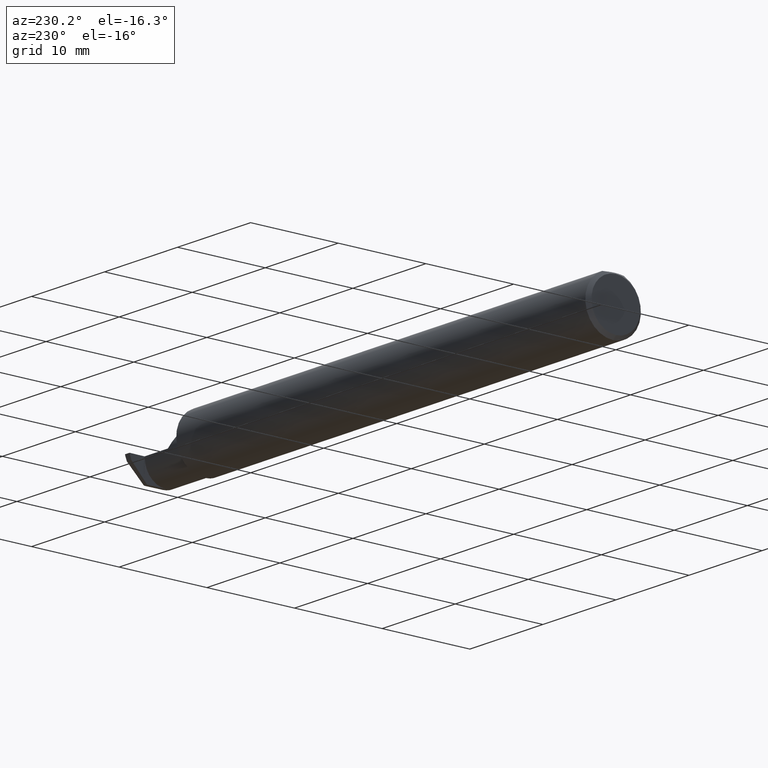
[diagram: clean part render]
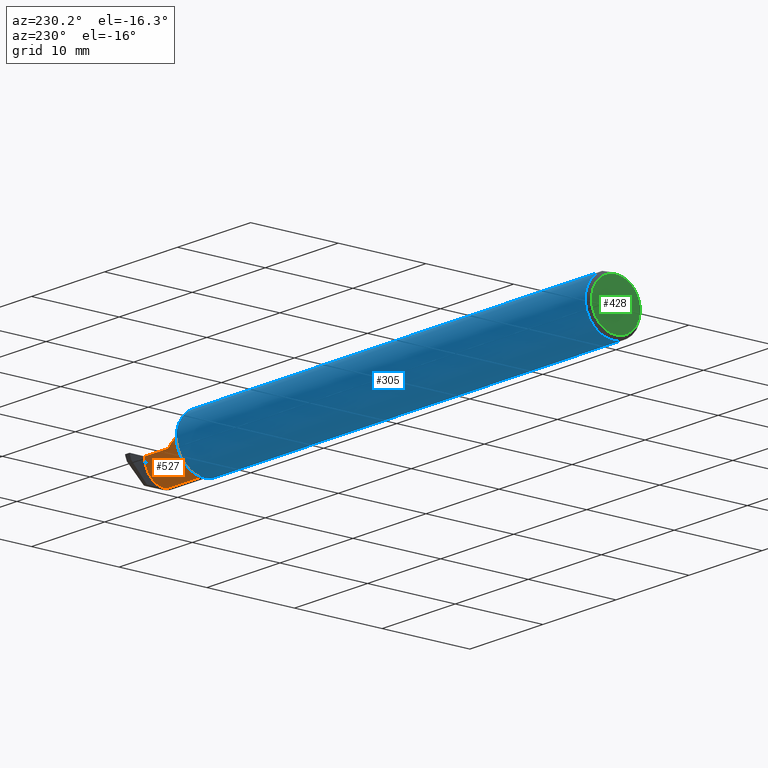
[diagram: same view with three faces highlighted in distinct colors, each labeled with its STEP entity id]
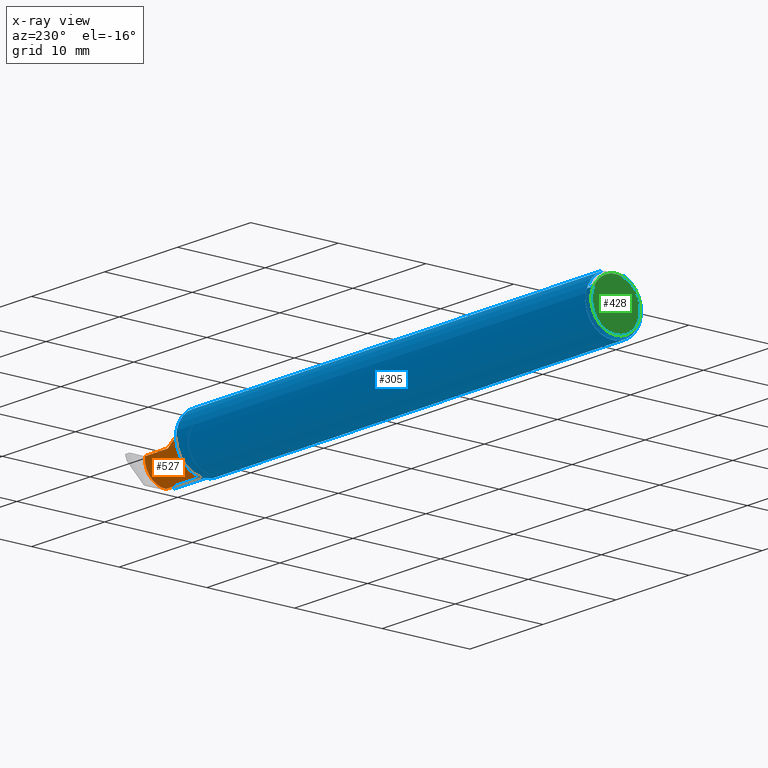
[diagram: x-ray of the same camera — body ghosted, the three highlighted faces saturated]
A machine part, auxiliary view with three faces highlighted in distinct colors.
The next image is the same camera in x-ray (body ghosted, the three faces saturated) — at least one of them is partly hidden behind the body in this view.
Their STEP definitions:

[orange] entity #527 — the highlighted cylindrical surface (edge-blend (fillet) strip) has radius 2.4892 mm, axis along (-1, -0, -0).
#12 = VERTEX_POINT ( 'NONE', #109 ) ;
#17 = LINE ( 'NONE', #197, #691 ) ;
#25 = DIRECTION ( 'NONE',  ( 1.000000000000000000, 0.000000000000000000, 0.000000000000000000 ) ) ;
#31 = VERTEX_POINT ( 'NONE', #293 ) ;
#37 = VERTEX_POINT ( 'NONE', #611 ) ;
#46 = CARTESIAN_POINT ( 'NONE',  ( 2.252000000000000668, 0.01355707088743670317, 0.09799999999999996214 ) ) ;
#57 = ORIENTED_EDGE ( 'NONE', *, *, #615, .T. ) ;
#70 =( BOUNDED_CURVE ( )  B_SPLINE_CURVE ( 3, ( #675, #780, #361, #617 ),
 .UNSPECIFIED., .F., .T. ) 
 B_SPLINE_CURVE_WITH_KNOTS ( ( 4, 4 ),
 ( 3.140983202202990654, 4.463962699426423875 ),
 .UNSPECIFIED. ) 
 CURVE ( )  GEOMETRIC_REPRESENTATION_ITEM ( )  RATIONAL_B_SPLINE_CURVE ( ( 1.000000000000000000, 0.8593853101475599221, 0.8593853101475599221, 1.000000000000000000 ) ) 
 REPRESENTATION_ITEM ( '' )  );
#81 = ORIENTED_EDGE ( 'NONE', *, *, #626, .T. ) ;
#83 = EDGE_CURVE ( 'NONE', #410, #400, #70, .T. ) ;
#109 = CARTESIAN_POINT ( 'NONE',  ( 2.350000000000000089, 0.05414999999999988572, 1.836970198721028825E-17 ) ) ;
#110 = VERTEX_POINT ( 'NONE', #644 ) ;
#112 = CARTESIAN_POINT ( 'NONE',  ( 2.252000000000000668, -0.04385000000000001397, 0.09800000000000000377 ) ) ;
#122 = FACE_OUTER_BOUND ( 'NONE', #142, .T. ) ;
#132 = ORIENTED_EDGE ( 'NONE', *, *, #180, .F. ) ;
#140 = CARTESIAN_POINT ( 'NONE',  ( 2.475160734290017928, 0.05314349951121612181, -0.01618353831829611247 ) ) ;
#142 = EDGE_LOOP ( 'NONE', ( #678, #524, #594, #718, #81, #488, #57, #132 ) ) ;
#152 = EDGE_CURVE ( 'NONE', #110, #37, #17, .T. ) ;
#162 = CARTESIAN_POINT ( 'NONE',  ( 2.474499999999999922, -0.04385000000000001397, 0.000000000000000000 ) ) ;
#176 = AXIS2_PLACEMENT_3D ( 'NONE', #610, #352, #480 ) ;
#177 = DIRECTION ( 'NONE',  ( 0.000000000000000000, 0.000000000000000000, 1.000000000000000000 ) ) ;
#180 = EDGE_CURVE ( 'NONE', #400, #735, #565, .T. ) ;
#197 = CARTESIAN_POINT ( 'NONE',  ( 2.220000000000000195, -0.04385000000000001397, 0.09800000000000000377 ) ) ;
#224 = DIRECTION ( 'NONE',  ( 0.000000000000000000, 0.000000000000000000, 1.000000000000000000 ) ) ;
#232 = CARTESIAN_POINT ( 'NONE',  ( 2.350000000000000089, 0.05414999999999988572, 1.836970198721028825E-17 ) ) ;
#242 = AXIS2_PLACEMENT_3D ( 'NONE', #162, #344, #224 ) ;
#262 = CARTESIAN_POINT ( 'NONE',  ( 2.475482208140546536, 0.05115612325138354372, -0.02403823089877875352 ) ) ;
#279 = CARTESIAN_POINT ( 'NONE',  ( 2.474499999999999922, 0.05415000000000001062, 3.429016444442839995E-17 ) ) ;
#293 = CARTESIAN_POINT ( 'NONE',  ( 2.245000000000000107, -0.04385000000000000009, -0.09800000000000001765 ) ) ;
#299 = CYLINDRICAL_SURFACE ( 'NONE', #176, 0.09800000000000000377 ) ;
#344 = DIRECTION ( 'NONE',  ( -1.000000000000000000, -0.000000000000000000, -0.000000000000000000 ) ) ;
#348 = CARTESIAN_POINT ( 'NONE',  ( 2.292592929112563738, 0.05415000000000004532, 0.05740707088743669112 ) ) ;
#350 = LINE ( 'NONE', #575, #703 ) ;
#351 = CARTESIAN_POINT ( 'NONE',  ( 2.479353376795600639, -0.04385000000000004172, -0.09799999999999998990 ) ) ;
#352 = DIRECTION ( 'NONE',  ( -1.000000000000000000, -0.000000000000000000, -0.000000000000000000 ) ) ;
#360 = DIRECTION ( 'NONE',  ( -1.000000000000000000, -0.000000000000000000, -0.000000000000000000 ) ) ;
#361 = CARTESIAN_POINT ( 'NONE',  ( 2.477853341463135184, 0.03970102213383049083, -0.06931214282740386090 ) ) ;
#363 = CARTESIAN_POINT ( 'NONE',  ( 2.475482208140546536, 0.05115612325138354372, -0.02403823089877875352 ) ) ;
#375 = CARTESIAN_POINT ( 'NONE',  ( 2.474499999999999922, 0.05414999123725555696, -4.144270477499288293E-05 ) ) ;
#384 = CARTESIAN_POINT ( 'NONE',  ( 2.474831655309489786, 0.05414656493488109734, -0.008143655253979618230 ) ) ;
#400 = VERTEX_POINT ( 'NONE', #363 ) ;
#407 = VECTOR ( 'NONE', #360, 39.37007874015748143 ) ;
#410 = VERTEX_POINT ( 'NONE', #351 ) ;
#461 = CIRCLE ( 'NONE', #734, 0.09800000000000000377 ) ;
#465 = VERTEX_POINT ( 'NONE', #279 ) ;
#468 = LINE ( 'NONE', #788, #407 ) ;
#480 = DIRECTION ( 'NONE',  ( 0.000000000000000000, 0.000000000000000000, 1.000000000000000000 ) ) ;
#483 =( BOUNDED_CURVE ( )  B_SPLINE_CURVE ( 3, ( #112, #46, #348, #232 ),
 .UNSPECIFIED., .F., .T. ) 
 B_SPLINE_CURVE_WITH_KNOTS ( ( 4, 4 ),
 ( 0.000000000000000000, 1.570796326794896558 ),
 .UNSPECIFIED. ) 
 CURVE ( )  GEOMETRIC_REPRESENTATION_ITEM ( )  RATIONAL_B_SPLINE_CURVE ( ( 1.000000000000000000, 0.8047378541243649375, 0.8047378541243649375, 1.000000000000000000 ) ) 
 REPRESENTATION_ITEM ( '' )  );
#488 = ORIENTED_EDGE ( 'NONE', *, *, #778, .T. ) ;
#501 = CARTESIAN_POINT ( 'NONE',  ( 2.474499999999999922, 0.05414999123725555696, -4.144270477499288293E-05 ) ) ;
#524 = ORIENTED_EDGE ( 'NONE', *, *, #577, .T. ) ;
#527 = ADVANCED_FACE ( 'NONE', ( #122 ), #299, .T. ) ;
#565 =( BOUNDED_CURVE ( )  B_SPLINE_CURVE ( 3, ( #262, #140, #384, #501 ),
 .UNSPECIFIED., .F., .F. ) 
 B_SPLINE_CURVE_WITH_KNOTS ( ( 4, 4 ),
 ( 4.463962699426427427, 4.711356644242684411 ),
 .UNSPECIFIED. ) 
 CURVE ( )  GEOMETRIC_REPRESENTATION_ITEM ( )  RATIONAL_B_SPLINE_CURVE ( ( 1.000000000000000000, 0.9949061863229001768, 0.9949061863229001768, 1.000000000000000000 ) ) 
 REPRESENTATION_ITEM ( '' )  );
#575 = CARTESIAN_POINT ( 'NONE',  ( 2.220000000000000195, 0.05414999999999998981, 3.429011037612586318E-17 ) ) ;
#577 = EDGE_CURVE ( 'NONE', #410, #31, #468, .T. ) ;
#593 = CIRCLE ( 'NONE', #242, 0.09800000000000000377 ) ;
#594 = ORIENTED_EDGE ( 'NONE', *, *, #596, .F. ) ;
#596 = EDGE_CURVE ( 'NONE', #37, #31, #461, .T. ) ;
#610 = CARTESIAN_POINT ( 'NONE',  ( 2.220000000000000195, -0.04385000000000001397, 0.000000000000000000 ) ) ;
#611 = CARTESIAN_POINT ( 'NONE',  ( 2.245000000000000107, -0.04385000000000001397, 0.09800000000000001765 ) ) ;
#615 = EDGE_CURVE ( 'NONE', #465, #735, #593, .T. ) ;
#617 = CARTESIAN_POINT ( 'NONE',  ( 2.475482208140546536, 0.05115612325138354372, -0.02403823089877875352 ) ) ;
#626 = EDGE_CURVE ( 'NONE', #110, #12, #483, .T. ) ;
#644 = CARTESIAN_POINT ( 'NONE',  ( 2.252000000000000668, -0.04385000000000001397, 0.09800000000000000377 ) ) ;
#654 = DIRECTION ( 'NONE',  ( -1.000000000000000000, -0.000000000000000000, -0.000000000000000000 ) ) ;
#675 = CARTESIAN_POINT ( 'NONE',  ( 2.479353376795600639, -0.04385000000000004172, -0.09799999999999998990 ) ) ;
#678 = ORIENTED_EDGE ( 'NONE', *, *, #83, .F. ) ;
#691 = VECTOR ( 'NONE', #692, 39.37007874015748143 ) ;
#692 = DIRECTION ( 'NONE',  ( -1.000000000000000000, -0.000000000000000000, -0.000000000000000000 ) ) ;
#703 = VECTOR ( 'NONE', #25, 39.37007874015748143 ) ;
#716 = CARTESIAN_POINT ( 'NONE',  ( 2.245000000000000107, -0.04385000000000001397, 0.000000000000000000 ) ) ;
#718 = ORIENTED_EDGE ( 'NONE', *, *, #152, .F. ) ;
#734 = AXIS2_PLACEMENT_3D ( 'NONE', #716, #654, #177 ) ;
#735 = VERTEX_POINT ( 'NONE', #375 ) ;
#778 = EDGE_CURVE ( 'NONE', #12, #465, #350, .T. ) ;
#780 = CARTESIAN_POINT ( 'NONE',  ( 2.479354867654527617, 0.002850604310161387097, -0.09800000000000001765 ) ) ;
#788 = CARTESIAN_POINT ( 'NONE',  ( 2.220000000000000195, -0.04385000000000000703, -0.09800000000000000377 ) ) ;

[blue] entity #305 — the highlighted cylindrical surface (edge-blend (fillet) strip) has radius 3.1712 mm, axis along (-1, -0, -0).
#1 = CARTESIAN_POINT ( 'NONE',  ( 2.220756598855983643, -0.04384999999999998621, -0.1168961077196328247 ) ) ;
#10 = CARTESIAN_POINT ( 'NONE',  ( 2.287163018370355072, -0.1127002472623169216, 0.06283698162964553025 ) ) ;
#13 = EDGE_CURVE ( 'NONE', #532, #574, #722, .T. ) ;
#15 = CARTESIAN_POINT ( 'NONE',  ( 2.223850144156348740, -0.06295012366509161739, -0.1079450122012244745 ) ) ;
#18 = CARTESIAN_POINT ( 'NONE',  ( 2.225064983703084476, -0.06736177101644141851, -0.1052426774175048707 ) ) ;
#19 = AXIS2_PLACEMENT_3D ( 'NONE', #27, #508, #753 ) ;
#22 = EDGE_CURVE ( 'NONE', #789, #532, #668, .T. ) ;
#23 = CARTESIAN_POINT ( 'NONE',  ( 2.221326891871145737, -0.04895916665872793172, 0.1148500000000000076 ) ) ;
#27 = CARTESIAN_POINT ( 'NONE',  ( 2.219999999999999751, 0.000000000000000000, 0.000000000000000000 ) ) ;
#34 = EDGE_LOOP ( 'NONE', ( #149, #755, #146, #250, #91, #206, #169, #430, #476, #313, #168, #371, #187, #183 ) ) ;
#38 = LINE ( 'NONE', #223, #513 ) ;
#42 = CARTESIAN_POINT ( 'NONE',  ( 2.220242610568497810, -0.03840785182185595115, -0.1189375631818110624 ) ) ;
#43 = CARTESIAN_POINT ( 'NONE',  ( 0.01499999999999999944, 0.000000000000000000, 0.000000000000000000 ) ) ;
#55 = CARTESIAN_POINT ( 'NONE',  ( 2.493072779947982820, -0.1248043149033065402, -0.09996577117162359916 ) ) ;
#64 = CARTESIAN_POINT ( 'NONE',  ( 2.224335346929611656, -0.06618116991694833473, 0.1062694618620797227 ) ) ;
#76 = CARTESIAN_POINT ( 'NONE',  ( 2.219999999999999751, 0.04895916665957496944, 0.1148500000000000076 ) ) ;
#80 = CARTESIAN_POINT ( 'NONE',  ( 2.245000000000000107, -0.09015216647662482874, 0.08637192471845768493 ) ) ;
#91 = ORIENTED_EDGE ( 'NONE', *, *, #690, .T. ) ;
#111 = DIRECTION ( 'NONE',  ( -1.000000000000000000, -0.000000000000000000, -0.000000000000000000 ) ) ;
#116 = LINE ( 'NONE', #55, #634 ) ;
#127 = CARTESIAN_POINT ( 'NONE',  ( 2.242502509400819299, -0.09015216647698157115, 0.08637192471808538552 ) ) ;
#129 = CARTESIAN_POINT ( 'NONE',  ( 2.494033449660867152, -0.09015216647662482874, -0.08637192471845768493 ) ) ;
#134 = CARTESIAN_POINT ( 'NONE',  ( 2.229117122045868538, -0.07738857672815997735, 0.09808127502738611669 ) ) ;
#137 = CARTESIAN_POINT ( 'NONE',  ( 2.245000000000000107, -0.09015216647662478711, -0.08637192471845771269 ) ) ;
#138 = VECTOR ( 'NONE', #769, 39.37007874015748143 ) ;
#141 = CARTESIAN_POINT ( 'NONE',  ( 2.359750000000000014, -0.09015216647662482874, -0.08637192471845768493 ) ) ;
#146 = ORIENTED_EDGE ( 'NONE', *, *, #552, .T. ) ;
#149 = ORIENTED_EDGE ( 'NONE', *, *, #464, .F. ) ;
#157 = LINE ( 'NONE', #403, #316 ) ;
#167 = EDGE_CURVE ( 'NONE', #562, #649, #473, .T. ) ;
#168 = ORIENTED_EDGE ( 'NONE', *, *, #260, .F. ) ;
#169 = ORIENTED_EDGE ( 'NONE', *, *, #638, .F. ) ;
#182 = CARTESIAN_POINT ( 'NONE',  ( 2.220756598855983643, -0.04384999999999998621, -0.1168961077196328247 ) ) ;
#183 = ORIENTED_EDGE ( 'NONE', *, *, #751, .F. ) ;
#187 = ORIENTED_EDGE ( 'NONE', *, *, #528, .F. ) ;
#193 = CARTESIAN_POINT ( 'NONE',  ( 0.01499999999999999944, 0.000000000000000000, 0.000000000000000000 ) ) ;
#206 = ORIENTED_EDGE ( 'NONE', *, *, #283, .F. ) ;
#214 = DIRECTION ( 'NONE',  ( -1.000000000000000000, -0.000000000000000000, -0.000000000000000000 ) ) ;
#223 = CARTESIAN_POINT ( 'NONE',  ( 0.000000000000000000, 0.04895916665957456698, 0.1148500000000000076 ) ) ;
#233 = DIRECTION ( 'NONE',  ( -1.000000000000000000, -0.000000000000000000, -0.000000000000000000 ) ) ;
#249 = CARTESIAN_POINT ( 'NONE',  ( 2.221929090759344305, -0.05370719728932729642, -0.1128289886859671631 ) ) ;
#250 = ORIENTED_EDGE ( 'NONE', *, *, #309, .T. ) ;
#251 = CARTESIAN_POINT ( 'NONE',  ( 2.240195245915135303, -0.08928014009840869181, 0.08728826463237990274 ) ) ;
#260 = EDGE_CURVE ( 'NONE', #649, #694, #38, .T. ) ;
#274 = B_SPLINE_CURVE_WITH_KNOTS ( 'NONE', 3,
 ( #137, #380, #490, #564, #558, #312, #494, #18, #15, #249, #424, #497 ),
 .UNSPECIFIED., .F., .F.,
 ( 4, 2, 2, 2, 2, 4 ),
 ( 1.963988863453036158E-07, 0.0002052720857047457591, 0.0004103477725231461813, 0.0008204991461599577592, 0.001230650519796769446, 0.001640801893433581349 ),
 .UNSPECIFIED. ) ;
#283 = EDGE_CURVE ( 'NONE', #687, #631, #399, .T. ) ;
#288 = CARTESIAN_POINT ( 'NONE',  ( 2.219999999999999751, -0.02715330672748003313, -0.1218614805168695830 ) ) ;
#296 = CARTESIAN_POINT ( 'NONE',  ( 2.219999999999999751, -0.02715330672748003313, -0.1218614805168695830 ) ) ;
#305 = ADVANCED_FACE ( 'NONE', ( #467 ), #333, .T. ) ;
#308 = CARTESIAN_POINT ( 'NONE',  ( 2.222489051389807013, -0.05793447593674648510, 0.1110239341513685057 ) ) ;
#309 = EDGE_CURVE ( 'NONE', #559, #612, #157, .T. ) ;
#312 = CARTESIAN_POINT ( 'NONE',  ( 2.230226514481665312, -0.07966992494485874987, -0.09623747760188196276 ) ) ;
#313 = ORIENTED_EDGE ( 'NONE', *, *, #713, .F. ) ;
#316 = VECTOR ( 'NONE', #652, 39.37007874015748143 ) ;
#331 = CARTESIAN_POINT ( 'NONE',  ( 2.494256244271084721, -0.1126860773865890480, -0.06285177167860772629 ) ) ;
#333 = CYLINDRICAL_SURFACE ( 'NONE', #499, 0.1248500000000000026 ) ;
#338 = LINE ( 'NONE', #141, #567 ) ;
#364 = CARTESIAN_POINT ( 'NONE',  ( 2.263628075281542529, -0.09015216647662421812, 0.08637192471845822617 ) ) ;
#371 = ORIENTED_EDGE ( 'NONE', *, *, #167, .F. ) ;
#372 = DIRECTION ( 'NONE',  ( 0.000000000000000000, 0.000000000000000000, 1.000000000000000000 ) ) ;
#380 = CARTESIAN_POINT ( 'NONE',  ( 2.242259638933030708, -0.09015216647662496752, -0.08637192471845753228 ) ) ;
#399 = LINE ( 'NONE', #650, #138 ) ;
#403 = CARTESIAN_POINT ( 'NONE',  ( 3.749399456654637998E-32, -0.1248500000000000026, 3.061616997868380676E-16 ) ) ;
#404 = CARTESIAN_POINT ( 'NONE',  ( 2.495690077103728921, -0.1248499999950965084, 1.733801157256528502E-17 ) ) ;
#412 = DIRECTION ( 'NONE',  ( -1.000000000000000000, -0.000000000000000000, -0.000000000000000000 ) ) ;
#417 = DIRECTION ( 'NONE',  ( 1.000000000000000000, 0.000000000000000000, 0.000000000000000000 ) ) ;
#424 = CARTESIAN_POINT ( 'NONE',  ( 2.221227715916084922, -0.04883822427082840090, -0.1150249279297937688 ) ) ;
#430 = ORIENTED_EDGE ( 'NONE', *, *, #13, .F. ) ;
#436 = CARTESIAN_POINT ( 'NONE',  ( 2.231053217927678745, -0.08094812012685032032, 0.09514231764822775328 ) ) ;
#439 = CARTESIAN_POINT ( 'NONE',  ( 2.245000000000000107, -0.09015216647662482874, 0.08637192471845768493 ) ) ;
#443 = CARTESIAN_POINT ( 'NONE',  ( 2.234990549600691878, -0.08554147198584249878, 0.09096407607062327594 ) ) ;
#464 = EDGE_CURVE ( 'NONE', #689, #520, #338, .T. ) ;
#467 = FACE_OUTER_BOUND ( 'NONE', #34, .T. ) ;
#473 = CIRCLE ( 'NONE', #19, 0.1248500000000000026 ) ;
#475 = AXIS2_PLACEMENT_3D ( 'NONE', #43, #233, #665 ) ;
#476 = ORIENTED_EDGE ( 'NONE', *, *, #22, .F. ) ;
#478 = EDGE_CURVE ( 'NONE', #689, #768, #533, .T. ) ;
#487 = DIRECTION ( 'NONE',  ( 0.02617296143184116158, -0.0004568507411563388484, 0.9996573249755575929 ) ) ;
#490 = CARTESIAN_POINT ( 'NONE',  ( 2.239784064659362084, -0.08911389870154561021, -0.08746251087962765569 ) ) ;
#494 = CARTESIAN_POINT ( 'NONE',  ( 2.228278800716857688, -0.07573621487658346862, -0.09938639293507162131 ) ) ;
#497 = CARTESIAN_POINT ( 'NONE',  ( 2.220756598855983643, -0.04384999999999998621, -0.1168961077196328247 ) ) ;
#499 = AXIS2_PLACEMENT_3D ( 'NONE', #714, #111, #709 ) ;
#503 = CARTESIAN_POINT ( 'NONE',  ( 2.263628075281542529, -0.09015216647662421812, 0.08637192471845822617 ) ) ;
#508 = DIRECTION ( 'NONE',  ( 1.000000000000000000, 0.000000000000000000, 0.000000000000000000 ) ) ;
#513 = VECTOR ( 'NONE', #412, 39.37007874015748143 ) ;
#514 = AXIS2_PLACEMENT_3D ( 'NONE', #193, #683, #372 ) ;
#520 = VERTEX_POINT ( 'NONE', #659 ) ;
#523 = B_SPLINE_CURVE_WITH_KNOTS ( 'NONE', 3,
 ( #1, #42, #674, #296 ),
 .UNSPECIFIED., .F., .F.,
 ( 4, 4 ),
 ( 0.001640801893433581349, 0.002088276671954493371 ),
 .UNSPECIFIED. ) ;
#528 = EDGE_CURVE ( 'NONE', #676, #562, #523, .T. ) ;
#532 = VERTEX_POINT ( 'NONE', #667 ) ;
#533 =( BOUNDED_CURVE ( )  B_SPLINE_CURVE ( 3, ( #586, #331, #767, #553 ),
 .UNSPECIFIED., .F., .F. ) 
 B_SPLINE_CURVE_WITH_KNOTS ( ( 4, 4 ),
 ( 0.2190942387645155864, 0.9826237902196512941 ),
 .UNSPECIFIED. ) 
 CURVE ( )  GEOMETRIC_REPRESENTATION_ITEM ( )  RATIONAL_B_SPLINE_CURVE ( ( 1.000000000000000000, 0.9520057322288819623, 0.9520057322288819623, 1.000000000000000000 ) ) 
 REPRESENTATION_ITEM ( '' )  );
#541 = CARTESIAN_POINT ( 'NONE',  ( 0.000000000000000000, -0.04895916665957456698, 0.1148500000000000076 ) ) ;
#552 = EDGE_CURVE ( 'NONE', #768, #559, #116, .T. ) ;
#553 = CARTESIAN_POINT ( 'NONE',  ( 2.495688583004118666, -0.1248499869621840785, -5.705736120969982501E-05 ) ) ;
#558 = CARTESIAN_POINT ( 'NONE',  ( 2.234311064734461283, -0.08485061678078671676, -0.09161469295857040118 ) ) ;
#559 = VERTEX_POINT ( 'NONE', #404 ) ;
#562 = VERTEX_POINT ( 'NONE', #288 ) ;
#564 = CARTESIAN_POINT ( 'NONE',  ( 2.235875432832430842, -0.08647060418110448510, -0.09007670266896469768 ) ) ;
#567 = VECTOR ( 'NONE', #214, 39.37007874015748143 ) ;
#569 = CARTESIAN_POINT ( 'NONE',  ( 2.317406910344188997, -0.1248500000000000304, 0.03259308965581166062 ) ) ;
#574 = VERTEX_POINT ( 'NONE', #784 ) ;
#586 = CARTESIAN_POINT ( 'NONE',  ( 2.494033449660867152, -0.09015216647662482874, -0.08637192471845768493 ) ) ;
#605 = VECTOR ( 'NONE', #417, 39.37007874015748143 ) ;
#612 = VERTEX_POINT ( 'NONE', #616 ) ;
#616 = CARTESIAN_POINT ( 'NONE',  ( 2.350000000000000089, -0.1248500000000000026, 1.836970198721028825E-17 ) ) ;
#631 = VERTEX_POINT ( 'NONE', #364 ) ;
#634 = VECTOR ( 'NONE', #487, 39.37007874015748854 ) ;
#636 = CARTESIAN_POINT ( 'NONE',  ( 2.236486677516400512, -0.08696861555842327896, 0.08959154238194051711 ) ) ;
#638 = EDGE_CURVE ( 'NONE', #574, #687, #723, .T. ) ;
#649 = VERTEX_POINT ( 'NONE', #76 ) ;
#650 = CARTESIAN_POINT ( 'NONE',  ( 2.359750000000000014, -0.09015216647662482874, 0.08637192471845768493 ) ) ;
#652 = DIRECTION ( 'NONE',  ( -1.000000000000000000, -0.000000000000000000, -0.000000000000000000 ) ) ;
#659 = CARTESIAN_POINT ( 'NONE',  ( 2.245000000000000107, -0.09015216647662478711, -0.08637192471845771269 ) ) ;
#665 = DIRECTION ( 'NONE',  ( 0.000000000000000000, 0.000000000000000000, 1.000000000000000000 ) ) ;
#667 = CARTESIAN_POINT ( 'NONE',  ( 0.01499999999999999944, -0.04895916665957456698, 0.1148500000000000076 ) ) ;
#668 = CIRCLE ( 'NONE', #475, 0.1248500000000000026 ) ;
#674 = CARTESIAN_POINT ( 'NONE',  ( 2.219999999999999751, -0.03284222813693380566, -0.1205938689030582739 ) ) ;
#676 = VERTEX_POINT ( 'NONE', #182 ) ;
#679 = CARTESIAN_POINT ( 'NONE',  ( 2.350000000000000089, -0.1248500000000000026, 1.836970198721028825E-17 ) ) ;
#683 = DIRECTION ( 'NONE',  ( -1.000000000000000000, -0.000000000000000000, -0.000000000000000000 ) ) ;
#686 = CARTESIAN_POINT ( 'NONE',  ( 0.01499999999999987454, 0.04895916665957496944, 0.1148500000000000076 ) ) ;
#687 = VERTEX_POINT ( 'NONE', #80 ) ;
#689 = VERTEX_POINT ( 'NONE', #129 ) ;
#690 = EDGE_CURVE ( 'NONE', #612, #631, #695, .T. ) ;
#694 = VERTEX_POINT ( 'NONE', #686 ) ;
#695 =( BOUNDED_CURVE ( )  B_SPLINE_CURVE ( 3, ( #679, #569, #10, #503 ),
 .UNSPECIFIED., .F., .F. ) 
 B_SPLINE_CURVE_WITH_KNOTS ( ( 4, 4 ),
 ( 4.712388980384690562, 5.476375539154175520 ),
 .UNSPECIFIED. ) 
 CURVE ( )  GEOMETRIC_REPRESENTATION_ITEM ( )  RATIONAL_B_SPLINE_CURVE ( ( 1.000000000000000000, 0.9519489620492029847, 0.9519489620492029847, 1.000000000000000000 ) ) 
 REPRESENTATION_ITEM ( '' )  );
#709 = DIRECTION ( 'NONE',  ( 0.000000000000000000, 0.000000000000000000, 1.000000000000000000 ) ) ;
#713 = EDGE_CURVE ( 'NONE', #694, #789, #756, .T. ) ;
#714 = CARTESIAN_POINT ( 'NONE',  ( 0.000000000000000000, 0.000000000000000000, 0.000000000000000000 ) ) ;
#722 = LINE ( 'NONE', #541, #605 ) ;
#723 = B_SPLINE_CURVE_WITH_KNOTS ( 'NONE', 3,
 ( #23, #308, #64, #134, #436, #443, #636, #251, #127, #439 ),
 .UNSPECIFIED., .F., .F.,
 ( 4, 2, 2, 2, 4 ),
 ( 5.065792320546690886E-07, 0.0007388407001990166542, 0.001108007760682497289, 0.001292591290924238094, 0.001477174821165978683 ),
 .UNSPECIFIED. ) ;
#744 = CARTESIAN_POINT ( 'NONE',  ( 2.495688583004118666, -0.1248499869621840785, -5.705736120969982501E-05 ) ) ;
#751 = EDGE_CURVE ( 'NONE', #520, #676, #274, .T. ) ;
#753 = DIRECTION ( 'NONE',  ( 0.000000000000000000, 0.000000000000000000, -1.000000000000000000 ) ) ;
#755 = ORIENTED_EDGE ( 'NONE', *, *, #478, .T. ) ;
#756 = CIRCLE ( 'NONE', #514, 0.1248500000000000026 ) ;
#758 = CARTESIAN_POINT ( 'NONE',  ( 0.01499999999999999944, 0.000000000000000000, -0.1248500000000000026 ) ) ;
#767 = CARTESIAN_POINT ( 'NONE',  ( 2.494835769263151537, -0.1248351010429638308, -0.03262966116142157480 ) ) ;
#768 = VERTEX_POINT ( 'NONE', #744 ) ;
#769 = DIRECTION ( 'NONE',  ( 1.000000000000000000, 0.000000000000000000, 0.000000000000000000 ) ) ;
#784 = CARTESIAN_POINT ( 'NONE',  ( 2.221326891871145737, -0.04895916665872793172, 0.1148500000000000076 ) ) ;
#789 = VERTEX_POINT ( 'NONE', #758 ) ;

[green] entity #428 — the highlighted planar face has unit normal (1, 0, 0).
#29 = VERTEX_POINT ( 'NONE', #284 ) ;
#131 = CARTESIAN_POINT ( 'NONE',  ( 0.000000000000000000, 0.000000000000000000, 0.000000000000000000 ) ) ;
#245 = FACE_OUTER_BOUND ( 'NONE', #578, .T. ) ;
#284 = CARTESIAN_POINT ( 'NONE',  ( 0.000000000000000000, 0.000000000000000000, -0.1098500000000000032 ) ) ;
#291 = DIRECTION ( 'NONE',  ( 0.000000000000000000, 0.000000000000000000, -1.000000000000000000 ) ) ;
#298 = CARTESIAN_POINT ( 'NONE',  ( 0.000000000000000000, 0.000000000000000000, 0.000000000000000000 ) ) ;
#301 = DIRECTION ( 'NONE',  ( 0.000000000000000000, 0.000000000000000000, 1.000000000000000000 ) ) ;
#321 = DIRECTION ( 'NONE',  ( 0.000000000000000000, 0.000000000000000000, 1.000000000000000000 ) ) ;
#327 = ORIENTED_EDGE ( 'NONE', *, *, #426, .T. ) ;
#355 = AXIS2_PLACEMENT_3D ( 'NONE', #603, #725, #291 ) ;
#426 = EDGE_CURVE ( 'NONE', #29, #437, #732, .T. ) ;
#427 = DIRECTION ( 'NONE',  ( -1.000000000000000000, -0.000000000000000000, -0.000000000000000000 ) ) ;
#428 = ADVANCED_FACE ( 'NONE', ( #245 ), #493, .F. ) ;
#437 = VERTEX_POINT ( 'NONE', #545 ) ;
#493 = PLANE ( 'NONE',  #355 ) ;
#495 = ORIENTED_EDGE ( 'NONE', *, *, #727, .T. ) ;
#545 = CARTESIAN_POINT ( 'NONE',  ( 0.000000000000000000, 1.437123018799419134E-17, 0.1098500000000000032 ) ) ;
#578 = EDGE_LOOP ( 'NONE', ( #327, #495 ) ) ;
#603 = CARTESIAN_POINT ( 'NONE',  ( 0.000000000000000000, 0.000000000000000000, 0.000000000000000000 ) ) ;
#623 = CIRCLE ( 'NONE', #717, 0.1098500000000000032 ) ;
#688 = DIRECTION ( 'NONE',  ( -1.000000000000000000, -0.000000000000000000, -0.000000000000000000 ) ) ;
#700 = AXIS2_PLACEMENT_3D ( 'NONE', #298, #427, #301 ) ;
#717 = AXIS2_PLACEMENT_3D ( 'NONE', #131, #688, #321 ) ;
#725 = DIRECTION ( 'NONE',  ( 1.000000000000000000, 0.000000000000000000, 0.000000000000000000 ) ) ;
#727 = EDGE_CURVE ( 'NONE', #437, #29, #623, .T. ) ;
#732 = CIRCLE ( 'NONE', #700, 0.1098500000000000032 ) ;